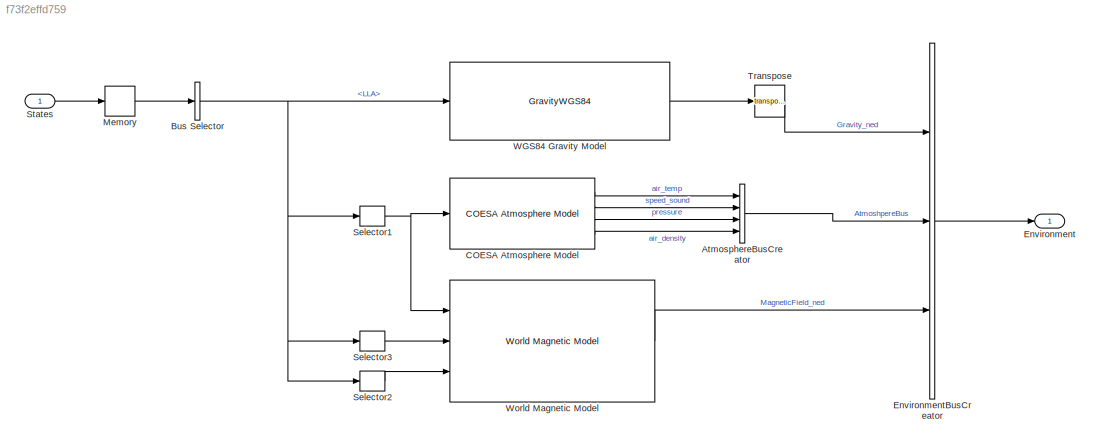
MODEL slx_f73f2effd759
KIND model
CONFIG AbsTol = auto
CONFIG EnableMultiTasking = on
CONFIG FixedStep = Ts
CONFIG MaxStep = auto
CONFIG MinStep = auto
CONFIG RelTol = 1e-3
CONFIG SampleTimeConstraint = Unconstrained
CONFIG SolverName = ode3
CONFIG StartTime = 0.0
CONFIG StopTime = 10.0
BLOCK [BusCreator] AtmosphereBusCreator
  DisplayOption = bar
  InheritFromInputs = on
  Inputs = 4
  OutDataTypeStr = Bus: AtmosphereBus
  Ports = [4, 1]
BLOCK [BusSelector] Bus Selector
  OutputSignals = LLA
  Ports = [1, 1]
BLOCK [Reference] COESA Atmosphere Model  REF=aerolibatmos2/COESA Atmosphere Model
  Ports = [1, 4]
  SourceBlock = aerolibatmos2/COESA Atmosphere Model
  SourceProductBaseCode = AE
  SourceType = Atmosphere Model
BLOCK [Outport] Environment
  OutDataTypeStr = Bus: EnvironmentBus
BLOCK [BusCreator] EnvironmentBusCreator
  DisplayOption = bar
  InheritFromInputs = on
  Inputs = 3
  OutDataTypeStr = Bus: EnvironmentBus
  Ports = [3, 1]
BLOCK [Memory] Memory
  InheritSampleTime = on
  InitialCondition = States
BLOCK [Selector] Selector1
  IndexOptions = Index vector (dialog)
  Indices = [3]
  InputPortWidth = 3
  OutputSizes = 1
  Ports = [1, 1]
BLOCK [Selector] Selector2
  IndexOptions = Index vector (dialog)
  Indices = [2]
  InputPortWidth = 3
  OutputSizes = 1
  Ports = [1, 1]
BLOCK [Selector] Selector3
  IndexOptions = Index vector (dialog)
  Indices = [1]
  InputPortWidth = 3
  OutputSizes = 1
  Ports = [1, 1]
BLOCK [Inport] States
  Interpolate = off
  OutDataTypeStr = Bus: StatesBus
BLOCK [Math] Transpose
  Operator = transpose
  Ports = [1, 1]
BLOCK [GravityWGS84] WGS84 Gravity Model  
  Ports = [1, 1]
BLOCK [Reference] World Magnetic Model  REF=aerolibgravity2/World Magnetic Model
  AttributesFormatString = %<model>
  Ports = [3, 1]
  SourceBlock = aerolibgravity2/World Magnetic Model
  SourceProductBaseCode = AE
  SourceType = WorldMagneticModel
LINE AtmosphereBusCreator:1 -> EnvironmentBusCreator:2
NET Bus Selector:1 -> Selector1:1, Selector2:1, Selector3:1, WGS84 Gravity Model  :1
LINE COESA Atmosphere Model:1 -> AtmosphereBusCreator:1
LINE COESA Atmosphere Model:2 -> AtmosphereBusCreator:2
LINE COESA Atmosphere Model:3 -> AtmosphereBusCreator:3
LINE COESA Atmosphere Model:4 -> AtmosphereBusCreator:4
LINE EnvironmentBusCreator:1 -> Environment:1
LINE Memory:1 -> Bus Selector:1
NET Selector1:1 -> COESA Atmosphere Model:1, World Magnetic Model:1
LINE Selector2:1 -> World Magnetic Model:3
LINE Selector3:1 -> World Magnetic Model:2
LINE States:1 -> Memory:1
LINE Transpose:1 -> EnvironmentBusCreator:1
LINE WGS84 Gravity Model  :1 -> Transpose:1
LINE World Magnetic Model:1 -> EnvironmentBusCreator:3
note: NET lines group one-source signal fan-out (src -> all destinations, sorted); 1:1 wires keep LINE
